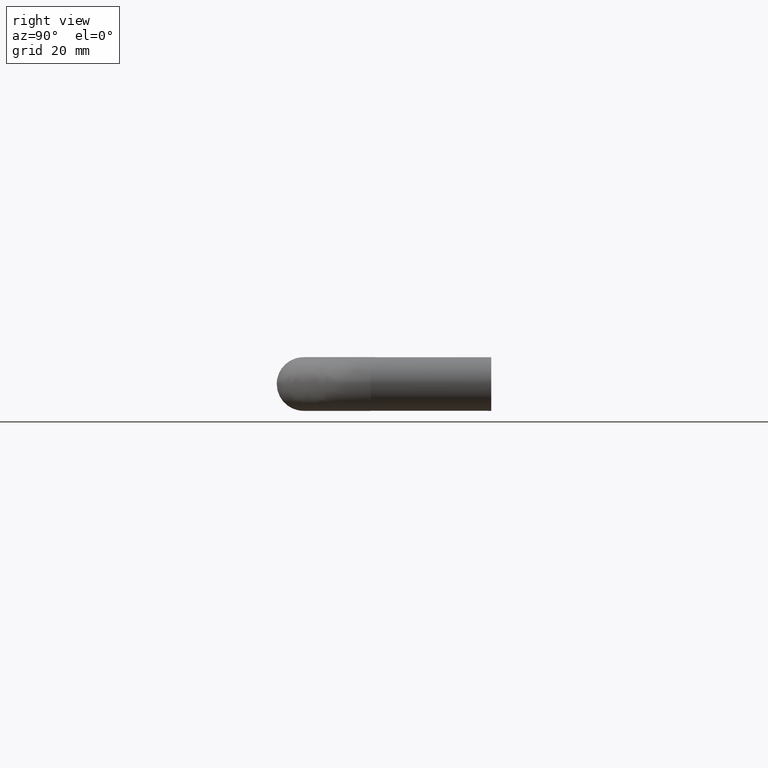
[diagram: clean part render]
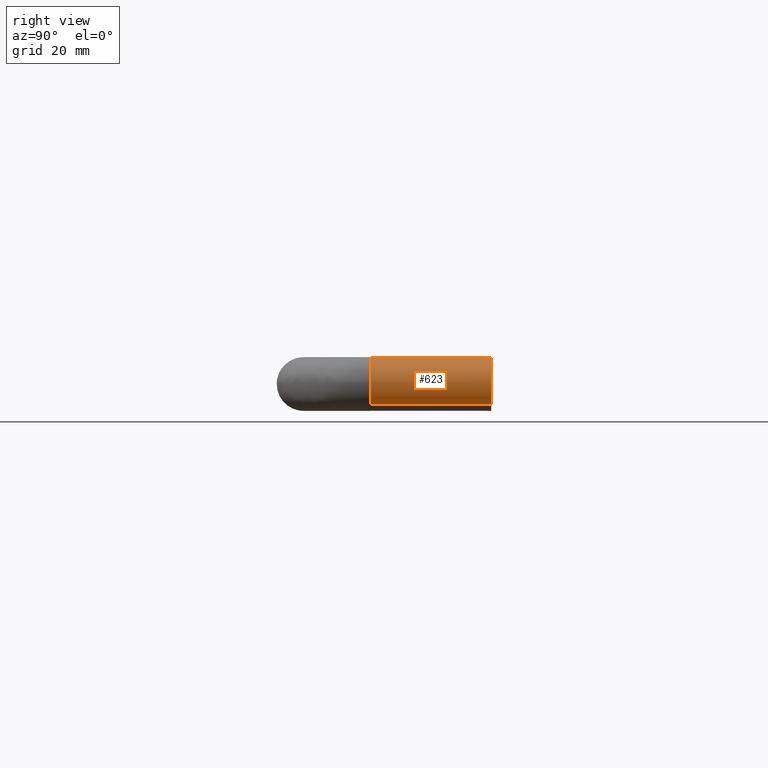
[diagram: same view with one face highlighted and labeled with its STEP entity id]
A machine part, right view. The second image highlights one B-rep face of the part: STEP entity #623.
In plain terms, the highlighted face is a freeform B-spline surface patch.
Its self-contained STEP definition (entity closure, byte-faithful):
#426=CARTESIAN_POINT('',(123.294846396518910,-22.499999999999961,-3.760849268894289));
#427=VERTEX_POINT('',#426);
#460=CARTESIAN_POINT('',(116.495453924891810,-22.500000000000011,3.566252487898725));
#461=VERTEX_POINT('',#460);
#475=CARTESIAN_POINT('',(116.495453921923100,1.532108E-014,3.566252484981392));
#476=VERTEX_POINT('',#475);
#477=CARTESIAN_POINT('',(116.495453924891810,-22.500000000000011,3.566252487898725));
#478=CARTESIAN_POINT('',(116.495453921923100,1.532108E-014,3.566252484981392));
#479=QUASI_UNIFORM_CURVE('',1,(#477,#478),.UNSPECIFIED.,.F.,.U.);
#480=EDGE_CURVE('',#461,#476,#479,.T.);
#497=CARTESIAN_POINT('',(123.294846414156400,1.511645E-014,-3.760849253442222));
#498=VERTEX_POINT('',#497);
#514=CARTESIAN_POINT('',(123.294846396518910,-22.499999999999961,-3.760849268894289));
#515=CARTESIAN_POINT('',(123.294846414156400,1.511645E-014,-3.760849253442222));
#516=QUASI_UNIFORM_CURVE('',1,(#514,#515),.UNSPECIFIED.,.F.,.U.);
#517=EDGE_CURVE('',#427,#498,#516,.T.);
#522=CARTESIAN_POINT('',(116.495453678500790,-23.062500000621188,3.566252245770907));
#523=CARTESIAN_POINT('',(120.061705924271680,-23.062500000621188,7.070798567270160));
#524=CARTESIAN_POINT('',(123.566252245770900,-23.062500000621188,3.504546321499253));
#525=CARTESIAN_POINT('',(127.070798567270160,-23.062500000621188,-0.061705924271653));
#526=CARTESIAN_POINT('',(123.504546321499300,-23.062500000621188,-3.566252245770907));
#527=CARTESIAN_POINT('',(123.402481714390850,-23.062500000621188,-3.666550855837281));
#528=CARTESIAN_POINT('',(123.294847860799650,-23.062500000621192,-3.760847986050986));
#529=CARTESIAN_POINT('',(116.495453678500790,0.576562500015545,3.566252245770907));
#530=CARTESIAN_POINT('',(120.061705924271680,0.576562500015545,7.070798567270160));
#531=CARTESIAN_POINT('',(123.566252245770900,0.576562500015545,3.504546321499253));
#532=CARTESIAN_POINT('',(127.070798567270160,0.576562500015544,-0.061705924271653));
#533=CARTESIAN_POINT('',(123.504546321499300,0.576562500015544,-3.566252245770907));
#534=CARTESIAN_POINT('',(123.402481714390850,0.576562500015544,-3.666550855837281));
#535=CARTESIAN_POINT('',(123.294847860799650,0.576562500015544,-3.760847986050986));
#543=(BOUNDED_SURFACE()B_SPLINE_SURFACE(2,1,((#522,#529),(#523,#530),(#524,#531),(#525,#532),(#526,#533),(#527,#534),(#528,#535)),.UNSPECIFIED.,.F.,.F.,.U.)B_SPLINE_SURFACE_WITH_KNOTS((3,2,2,3),(2,2),(0.0,8.284271247461899,16.568542494923800,16.899913344822270),(0.0,23.639062500636740),.UNSPECIFIED.)GEOMETRIC_REPRESENTATION_ITEM()RATIONAL_B_SPLINE_SURFACE(((1.0,1.0),(0.707106781186548,0.707106781186548),(1.0,1.0),(0.707106781186548,0.707106781186548),(1.0,1.0),(0.988284271247462,0.988284271247462),(0.977505800795127,0.977505800795127)))REPRESENTATION_ITEM('')SURFACE());
#544=CARTESIAN_POINT('',(125.0,-22.500000000000000,0.0));
#545=VERTEX_POINT('',#544);
#546=CARTESIAN_POINT('',(125.0,-22.500000000000000,0.0));
#547=CARTESIAN_POINT('',(125.000000000000010,-22.500000000000000,-2.266979452731507));
#548=CARTESIAN_POINT('',(123.294846396518930,-22.499999999999957,-3.760849268894289));
#556=(BOUNDED_CURVE()B_SPLINE_CURVE(2,(#546,#547,#548),.UNSPECIFIED.,.F.,.U.)B_SPLINE_CURVE_WITH_KNOTS((3,3),(0.0,0.134954778888341),.UNSPECIFIED.)CURVE()GEOMETRIC_REPRESENTATION_ITEM()RATIONAL_B_SPLINE_CURVE((1.0,0.841890641668545,0.854482191287481))REPRESENTATION_ITEM(''));
#557=EDGE_CURVE('',#545,#427,#556,.T.);
#558=ORIENTED_EDGE('',*,*,#557,.T.);
#559=ORIENTED_EDGE('',*,*,#517,.T.);
#560=CARTESIAN_POINT('',(125.0,1.387779E-014,0.0));
#561=VERTEX_POINT('',#560);
#562=CARTESIAN_POINT('',(125.0,1.387779E-014,0.0));
#563=CARTESIAN_POINT('',(125.000000000000010,1.387779E-014,-2.266979438596921));
#564=CARTESIAN_POINT('',(123.294846414156440,1.511645E-014,-3.760849253442222));
#572=(BOUNDED_CURVE()B_SPLINE_CURVE(2,(#562,#563,#564),.UNSPECIFIED.,.F.,.U.)B_SPLINE_CURVE_WITH_KNOTS((3,3),(0.0,0.134954778179939),.UNSPECIFIED.)CURVE()GEOMETRIC_REPRESENTATION_ITEM()RATIONAL_B_SPLINE_CURVE((1.0,0.841890642498489,0.854482191155290))REPRESENTATION_ITEM(''));
#573=EDGE_CURVE('',#561,#498,#572,.T.);
#574=ORIENTED_EDGE('',*,*,#573,.F.);
#575=CARTESIAN_POINT('',(116.495453921923140,1.532108E-014,3.566252484981392));
#576=CARTESIAN_POINT('',(117.954446391269000,1.387779E-014,5.000000000000001));
#577=CARTESIAN_POINT('',(120.0,1.387779E-014,5.0));
#578=CARTESIAN_POINT('',(125.0,1.387779E-014,5.000000000000001));
#579=CARTESIAN_POINT('',(125.0,1.387779E-014,0.0));
#587=(BOUNDED_CURVE()B_SPLINE_CURVE(2,(#575,#576,#577,#578,#579),.UNSPECIFIED.,.F.,.U.)B_SPLINE_CURVE_WITH_KNOTS((3,2,3),(0.626316778189914,0.750000000000000,1.0),.UNSPECIFIED.)CURVE()GEOMETRIC_REPRESENTATION_ITEM()RATIONAL_B_SPLINE_CURVE((0.853569641759943,0.855096092203303,1.0,0.707106781186548,1.0))REPRESENTATION_ITEM(''));
#588=EDGE_CURVE('',#476,#561,#587,.T.);
#589=ORIENTED_EDGE('',*,*,#588,.F.);
#590=ORIENTED_EDGE('',*,*,#480,.F.);
#591=CARTESIAN_POINT('',(120.348666259219400,-22.500000000209219,4.987828369108341));
#592=VERTEX_POINT('',#591);
#593=CARTESIAN_POINT('',(116.495453924891820,-22.500000000000011,3.566252487898725));
#594=CARTESIAN_POINT('',(117.954446396127880,-22.500000000000000,5.0));
#595=CARTESIAN_POINT('',(120.0,-22.500000000000000,5.0));
#596=CARTESIAN_POINT('',(120.174545580720660,-22.499999999999993,5.0));
#597=CARTESIAN_POINT('',(120.348666259219330,-22.500000000209216,4.987828369108341));
#605=(BOUNDED_CURVE()B_SPLINE_CURVE(2,(#593,#594,#595,#596,#597),.UNSPECIFIED.,.F.,.U.)B_SPLINE_CURVE_WITH_KNOTS((3,2,3),(0.626316778441131,0.750000000000000,0.762166313557421),.UNSPECIFIED.)CURVE()GEOMETRIC_REPRESENTATION_ITEM()RATIONAL_B_SPLINE_CURVE((0.853569641766144,0.855096092497621,1.0,0.985746277044292,0.972879876191303))REPRESENTATION_ITEM(''));
#606=EDGE_CURVE('',#461,#592,#605,.T.);
#607=ORIENTED_EDGE('',*,*,#606,.T.);
#608=CARTESIAN_POINT('',(120.348666259219370,-22.500000000209212,4.987828369108342));
#609=CARTESIAN_POINT('',(124.999999999999990,-22.500000000000000,4.662684233817658));
#610=CARTESIAN_POINT('',(125.0,-22.500000000000000,0.0));
#618=(BOUNDED_CURVE()B_SPLINE_CURVE(2,(#608,#609,#610),.UNSPECIFIED.,.F.,.U.)B_SPLINE_CURVE_WITH_KNOTS((3,3),(0.762166313557421,1.0),.UNSPECIFIED.)CURVE()GEOMETRIC_REPRESENTATION_ITEM()RATIONAL_B_SPLINE_CURVE((0.972879876191303,0.721360504142255,1.0))REPRESENTATION_ITEM(''));
#619=EDGE_CURVE('',#592,#545,#618,.T.);
#620=ORIENTED_EDGE('',*,*,#619,.T.);
#621=EDGE_LOOP('',(#558,#559,#574,#589,#590,#607,#620));
#622=FACE_OUTER_BOUND('',#621,.T.);
#623=ADVANCED_FACE('',(#622),#543,.T.);